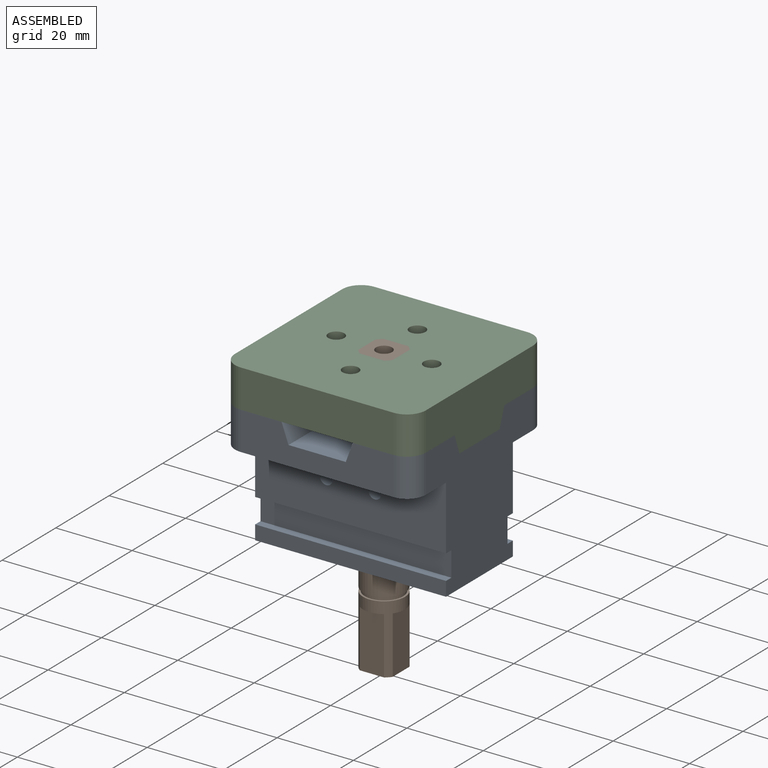
[diagram: assembled view]
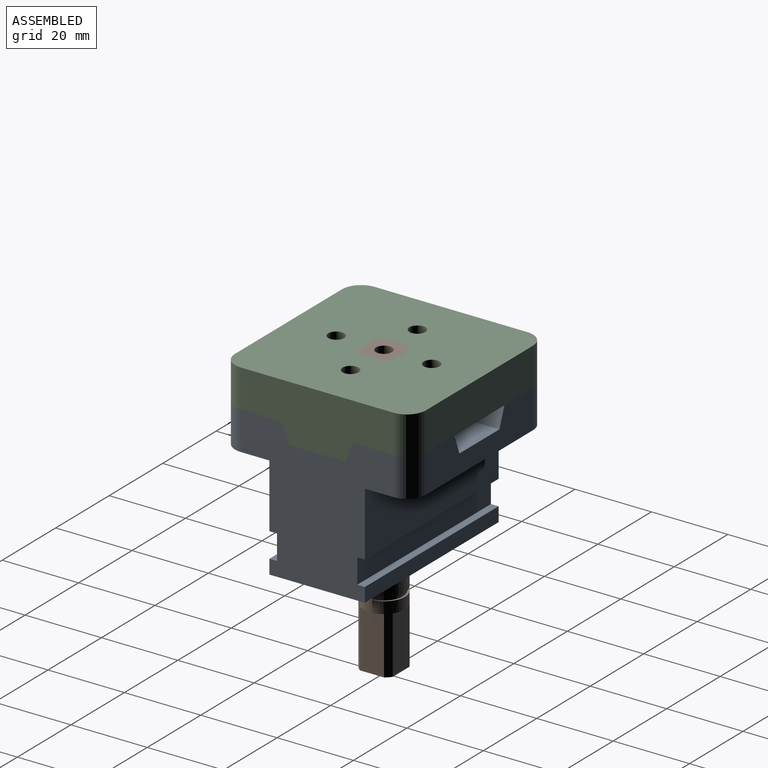
[diagram: assembled view, second angle]
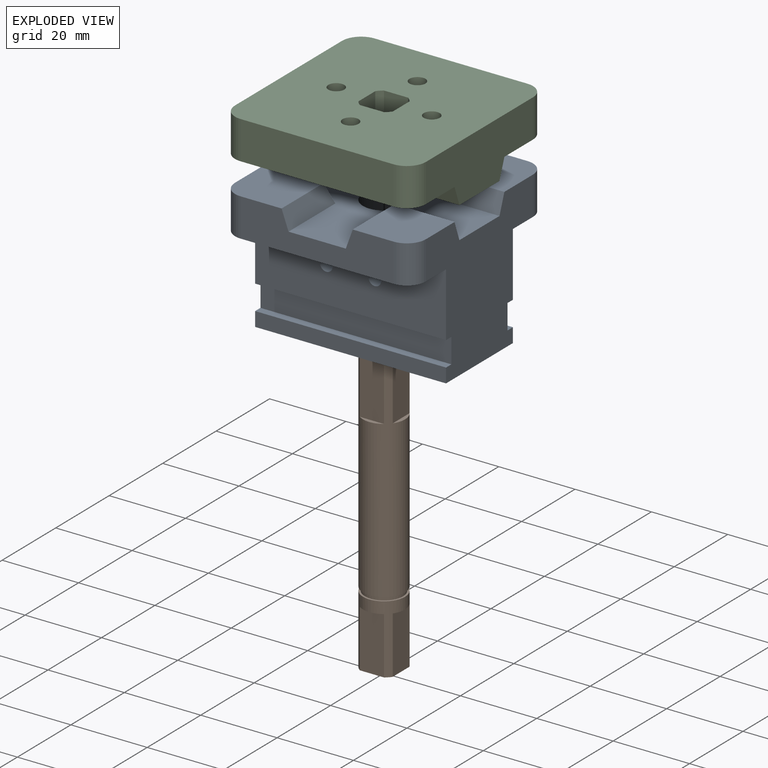
[diagram: exploded view]
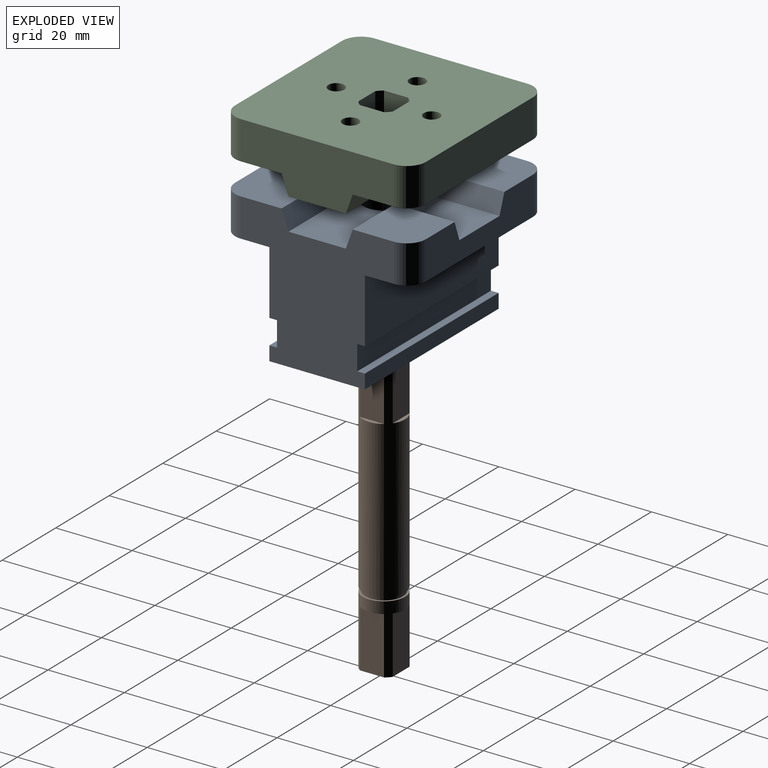
[diagram: exploded view, second angle]
ASSEMBLY  parts=3 mates=2
PART A: 45 faces, bbox 50x50x37 mm
  f0: cylinder r=5.5mm len=15mm, axis (0,0,1), area 515.8mm2, adj f14,f28,f29,f30,f31,f35,f36,f37
  f1: plane 50x16.75mm, normal (1,0,0), area 820.4mm2, adj f2,f5,f24,f32,f36,f38
  f2: plane 40x37mm, normal (0,-1,0), area 964.9mm2, adj f1,f3,f7,f9,f13,f14,f17,f18
  f3: plane 50x16.75mm, normal (-1,0,0), area 820.4mm2, adj f2,f5,f22,f25,f29,f31
  f4: plane 40x10mm, normal (-1,0,0), area 315.9mm2, adj f12,f13,f14,f15,f16,f22,f42,f43
  f5: plane 40x37mm, normal (0,1,0), area 964.9mm2, adj f1,f3,f7,f8,f12,f14,f19,f20
  f6: plane 40x10mm, normal (1,0,0), area 315.9mm2, adj f8,f9,f10,f11,f14,f24,f41,f44
  f7: plane 50x25mm, normal (0,0,-1), area 1073.3mm2, adj f2,f5,f21,f23,f39
  f8: plane 15.68x15.68mm, normal (0,0,1), area 240.5mm2, adj f5,f6,f10,f20,f41
  f9: plane 15.68x15.68mm, normal (0,0,1), area 240.5mm2, adj f2,f6,f11,f18,f44
  f10: plane 17.5x5mm, normal (0,-0.94,0.34), area 88.3mm2, adj f6,f8,f14,f20
  f11: plane 17.5x5mm, normal (0,0.94,0.34), area 88.3mm2, adj f6,f9,f14,f18
  f12: plane 15.68x15.68mm, normal (0,0,1), area 240.5mm2, adj f4,f5,f15,f19,f43
  f13: plane 15.68x15.68mm, normal (0,0,1), area 240.5mm2, adj f2,f4,f16,f17,f42
  f14: plane 50x50mm, normal (0,0,1), area 1180mm2, adj f0,f2,f4,f5,f6,f10,f11,f15
  f15: plane 17.5x5mm, normal (0,-0.94,0.34), area 88.3mm2, adj f4,f12,f14,f19
  f16: plane 17.5x5mm, normal (0,0.94,0.34), area 88.3mm2, adj f4,f13,f14,f17
  f17: plane 17.5x5mm, normal (0.94,0,0.34), area 88.3mm2, adj f2,f13,f14,f16
  f18: plane 17.5x5mm, normal (-0.94,0,0.34), area 88.3mm2, adj f2,f9,f11,f14
  f19: plane 17.5x5mm, normal (0.94,0,0.34), area 88.3mm2, adj f5,f12,f14,f15
  f20: plane 17.5x5mm, normal (-0.94,0,0.34), area 88.3mm2, adj f5,f8,f10,f14
  f21: plane 50x3.75mm, normal (-1,0,0), area 187.5mm2, adj f2,f5,f7,f26
  f22: plane 50x12.5mm, normal (0,0,-1), area 614.3mm2, adj f2,f3,f4,f5,f42,f43
  f23: plane 50x3.75mm, normal (1,0,0), area 187.5mm2, adj f2,f5,f7,f33
  f24: plane 50x12.5mm, normal (0,0,-1), area 614.3mm2, adj f1,f2,f5,f6,f41,f44
  f25: plane 50x2mm, normal (0,0,-1), area 100mm2, adj f2,f3,f5,f27
  f26: plane 50x2mm, normal (0,0,1), area 100mm2, adj f2,f5,f21,f27
  f27: plane 50x6.5mm, normal (-1,0,0), area 325mm2, adj f2,f5,f25,f26
  f28: cone r=0mm half-angle=59deg, axis (-1,0,0), area 9.6mm2, adj f0,f29
  f29: cylinder r=1.65mm len=10mm, axis (-1,0,0), area 103.3mm2, adj f0,f3,f28
  f30: cone r=0mm half-angle=59deg, axis (-1,0,0), area 9.6mm2, adj f0,f31
  f31: cylinder r=1.65mm len=10mm, axis (-1,0,0), area 103.3mm2, adj f0,f3,f30
  f32: plane 50x2mm, normal (0,0,-1), area 100mm2, adj f1,f2,f5,f34
  f33: plane 50x2mm, normal (0,0,1), area 100mm2, adj f2,f5,f23,f34
  f34: plane 50x6.5mm, normal (1,0,0), area 325mm2, adj f2,f5,f32,f33
  f35: cone r=0mm half-angle=59deg, axis (1,0,0), area 9.6mm2, adj f0,f36
  f36: cylinder r=1.65mm len=10mm, axis (1,0,0), area 103.3mm2, adj f0,f1,f35
  f37: cone r=0mm half-angle=59deg, axis (1,0,0), area 9.6mm2, adj f0,f38
  f38: cylinder r=1.65mm len=10mm, axis (1,0,0), area 103.3mm2, adj f0,f1,f37
  f39: cylinder r=7.5mm len=17mm, axis (0,0,-1), area 801.1mm2, adj f7,f40
  f40: plane 15x15mm, normal (0,0,-1), area 81.7mm2, adj f0,f39
  f41: cylinder r=5mm len=10mm, axis (0,0,1), area 78.5mm2, adj f5,f6,f8,f24
  f42: cylinder r=5mm len=10mm, axis (0,0,1), area 78.5mm2, adj f2,f4,f13,f22
  f43: cylinder r=5mm len=10mm, axis (0,0,-1), area 78.5mm2, adj f4,f5,f12,f22
  f44: cylinder r=5mm len=10mm, axis (0,0,-1), area 78.5mm2, adj f2,f6,f9,f24
PART B: 25 faces, bbox 11x11x75 mm
  f0: plane 9x9mm, normal (0,0,1), area 64mm2, adj f1,f16,f18,f20,f22,f24
  f1: cylinder r=5.5mm len=56mm, axis (0,0,1), area 1530.9mm2, adj f0,f6,f15,f16,f17,f18,f19,f20
  f2: plane 9x9mm, normal (0,0,-1), area 77.8mm2, adj f3,f8,f10,f12,f14
  f3: cylinder r=5.5mm len=18mm, axis (0,0,1), area 217.7mm2, adj f2,f5,f7,f8,f9,f10,f11,f12
  f4: cylinder r=5mm len=10mm, axis (0,0,1), area 31.4mm2, adj f5,f6
  f5: plane 11x11mm, normal (0,0,1), area 16.5mm2, adj f3,f4
  f6: plane 11x11mm, normal (0,0,-1), area 16.5mm2, adj f1,f4
  f7: plane 6.32x1mm, normal (0,0,-1), area 4.3mm2, adj f3,f8
  f8: plane 15x6.32mm, normal (-1,0,0), area 94.9mm2, adj f2,f3,f7
  f9: plane 6.32x1mm, normal (0,0,-1), area 4.3mm2, adj f3,f10
  f10: plane 15x6.32mm, normal (0,1,0), area 94.9mm2, adj f2,f3,f9
  f11: plane 6.32x1mm, normal (0,0,-1), area 4.3mm2, adj f3,f12
  f12: plane 15x6.32mm, normal (1,0,0), area 94.9mm2, adj f2,f3,f11
  f13: plane 6.32x1mm, normal (0,0,-1), area 4.3mm2, adj f3,f14
  f14: plane 15x6.32mm, normal (0,-1,0), area 94.9mm2, adj f2,f3,f13
  f15: plane 6.32x1mm, normal (0,0,1), area 4.3mm2, adj f1,f16
  f16: plane 15x6.32mm, normal (1,0,0), area 94.9mm2, adj f0,f1,f15
  f17: plane 6.32x1mm, normal (0,0,1), area 4.3mm2, adj f1,f18
  f18: plane 15x6.32mm, normal (0,1,0), area 94.9mm2, adj f0,f1,f17
  f19: plane 6.32x1mm, normal (0,0,1), area 4.3mm2, adj f1,f20
  f20: plane 15x6.32mm, normal (-1,0,0), area 94.9mm2, adj f0,f1,f19
  f21: plane 6.32x1mm, normal (0,0,1), area 4.3mm2, adj f1,f22
  f22: plane 15x6.32mm, normal (0,-1,0), area 94.9mm2, adj f0,f1,f21
  f23: plane 4.2x4.2mm, normal (0,0,1), area 13.9mm2, adj f24
  f24: cylinder r=2.1mm len=10mm, axis (0,0,-1), area 131.9mm2, adj f0,f23
PART C: 28 faces, bbox 50x50x15 mm
  f0: plane 50x15.68mm, normal (0,0,-1), area 759.4mm2, adj f1,f2,f4,f7,f10,f11,f19
  f1: plane 40x10mm, normal (0,1,0), area 400mm2, adj f0,f5,f10,f11
  f2: plane 40x15mm, normal (-1,0,0), area 484.1mm2, adj f0,f5,f6,f7,f8,f9,f11,f12
  f3: plane 40x10mm, normal (0,-1,0), area 400mm2, adj f5,f6,f12,f13
  f4: plane 40x15mm, normal (1,0,0), area 484.1mm2, adj f0,f5,f6,f7,f8,f9,f10,f13
  f5: plane 50x50mm, normal (0,0,1), area 2345.3mm2, adj f1,f2,f3,f4,f10,f11,f12,f13
  f6: plane 50x15.68mm, normal (0,0,-1), area 759.4mm2, adj f2,f3,f4,f8,f12,f13,f14
  f7: plane 50x5mm, normal (0,0.94,-0.34), area 266mm2, adj f0,f2,f4,f9
  f8: plane 50x5mm, normal (0,-0.94,-0.34), area 266mm2, adj f2,f4,f6,f9
  f9: plane 50x15mm, normal (0,0,-1), area 672.2mm2, adj f2,f4,f7,f8,f20,f21,f22,f23
  f10: cylinder r=5mm len=10mm, axis (0,0,-1), area 78.5mm2, adj f0,f1,f4,f5
  f11: cylinder r=5mm len=10mm, axis (0,0,1), area 78.5mm2, adj f0,f1,f2,f5
  f12: cylinder r=5mm len=10mm, axis (0,0,-1), area 78.5mm2, adj f2,f3,f5,f6
  f13: cylinder r=5mm len=10mm, axis (0,0,1), area 78.5mm2, adj f3,f4,f5,f6
  f14: cylinder r=2.1mm len=10mm, axis (0,0,1), area 131.9mm2, adj f5,f6
  f15: cone r=0mm half-angle=59deg, axis (0,0,1), area 16.2mm2, adj f16
  f16: cylinder r=2.1mm len=10mm, axis (0,0,1), area 131.9mm2, adj f5,f15
  f17: cone r=0mm half-angle=59deg, axis (0,0,1), area 16.2mm2, adj f18
  f18: cylinder r=2.1mm len=10mm, axis (0,0,1), area 131.9mm2, adj f5,f17
  f19: cylinder r=2.1mm len=10mm, axis (0,0,1), area 131.9mm2, adj f0,f5
  f20: cylinder r=5.5mm len=15mm, axis (0,0,1), area 28.5mm2, adj f5,f9,f24,f25
  f21: cylinder r=5.5mm len=15mm, axis (0,0,1), area 28.5mm2, adj f5,f9,f25,f26
  f22: cylinder r=5.5mm len=15mm, axis (0,0,1), area 28.5mm2, adj f5,f9,f26,f27
  f23: cylinder r=5.5mm len=15mm, axis (0,0,1), area 28.5mm2, adj f5,f9,f24,f27
  f24: plane 15x6.32mm, normal (-1,0,0), area 94.9mm2, adj f5,f9,f20,f23
  f25: plane 15x6.32mm, normal (0,-1,0), area 94.9mm2, adj f5,f9,f20,f21
  f26: plane 15x6.32mm, normal (1,0,0), area 94.9mm2, adj f5,f9,f21,f22
  f27: plane 15x6.32mm, normal (0,1,0), area 94.9mm2, adj f5,f9,f22,f23
PLACE A rot(axis=(0,0,1),90deg) t=(0,0,0)mm fixed
PLACE B rot(axis=(0,0,-1),0deg) t=(0,0,0)mm
PLACE C rot(axis=(0,0,-1),0deg) t=(0,0,0)mm
MATE cylindrical A.f0 <-> B.f1  axis (0,0,1) through (0,0,-5)mm
MATE fastened C.f20 <-> B.f1  axis (0,0,1) through (0,0,10)mm
